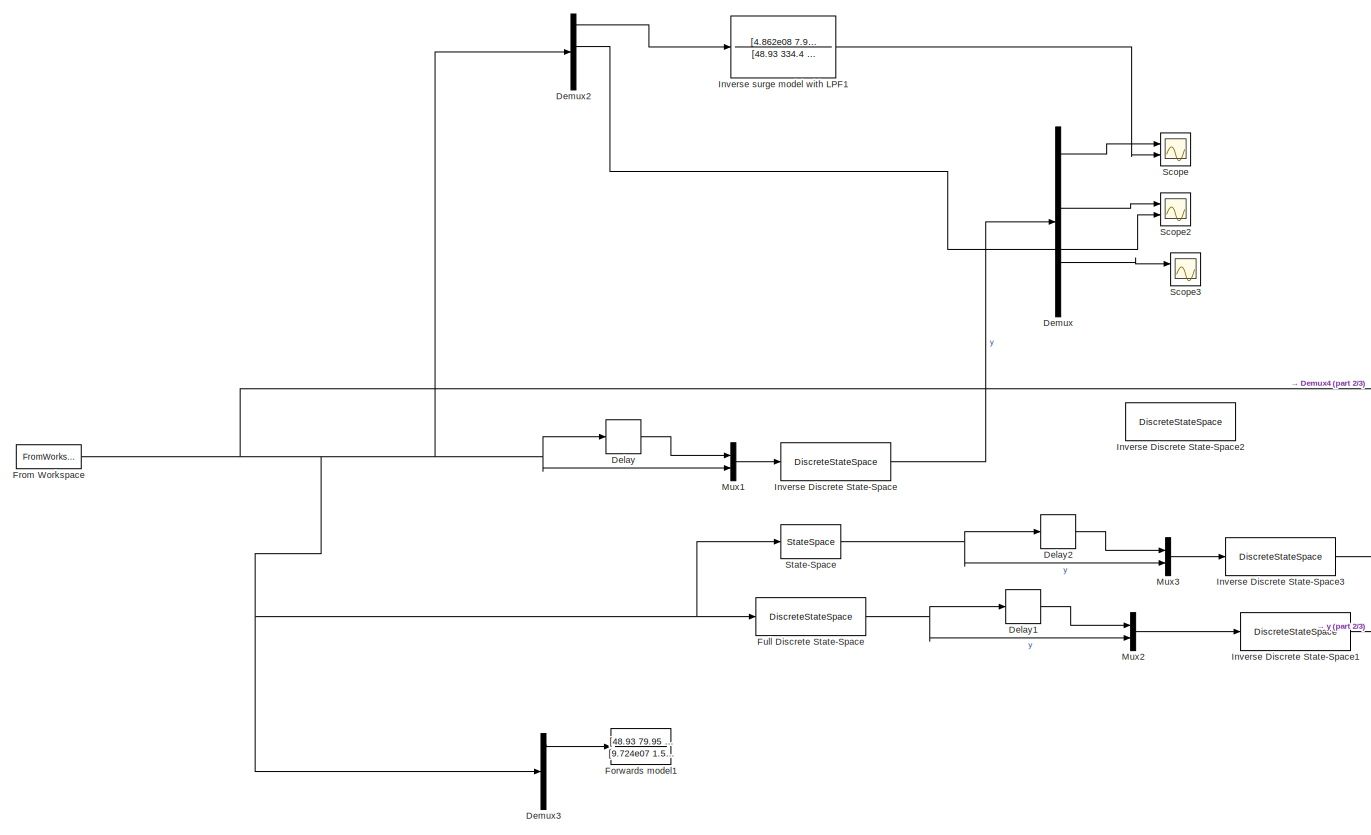
[diagram: root canvas - part 1/3, full width, top band]
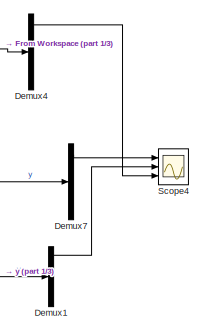
[diagram: root canvas - part 2/3, middle right region]
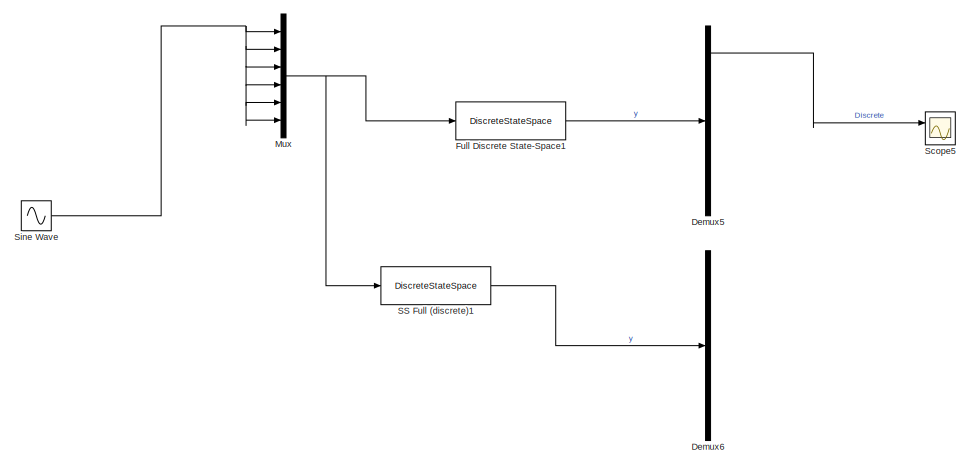
[diagram: root canvas - part 3/3, bottom center region]
MODEL slx_60f16b89c1cf
KIND model
CONFIG AbsTol = auto
CONFIG EnableMultiTasking = off
CONFIG FixedStep = 0.02
CONFIG MaxStep = auto
CONFIG MinStep = auto
CONFIG RelTol = 1e-3
CONFIG SampleTimeConstraint = Unconstrained
CONFIG Solver = ode4
CONFIG SolverName = ode4
CONFIG StartTime = 0.0
CONFIG StopTime = 300
BLOCK [Delay] Delay
  DelayLength = 1
  InitialCondition = 0
  InputPortMap = u0
  Ports = [1, 1]
BLOCK [Delay] Delay1
  DelayLength = 1
  InitialCondition = 0
  InputPortMap = u0
  Ports = [1, 1]
BLOCK [Delay] Delay2
  DelayLength = 1
  InitialCondition = 0
  InputPortMap = u0
  Ports = [1, 1]
BLOCK [Demux] Demux
  DisplayOption = bar
  Outputs = 6
  Ports = [1, 6]
BLOCK [Demux] Demux1
  DisplayOption = bar
  Outputs = 6
  Ports = [1, 6]
BLOCK [Demux] Demux2
  DisplayOption = bar
  Outputs = 6
  Ports = [1, 6]
BLOCK [Demux] Demux3
  DisplayOption = bar
  Outputs = 6
  Ports = [1, 6]
BLOCK [Demux] Demux4
  DisplayOption = bar
  Outputs = 6
  Ports = [1, 6]
BLOCK [Demux] Demux5
  DisplayOption = bar
  Outputs = 6
  Ports = [1, 6]
BLOCK [Demux] Demux6
  DisplayOption = bar
  Outputs = 6
  Ports = [1, 6]
BLOCK [Demux] Demux7
  DisplayOption = bar
  Outputs = 6
  Ports = [1, 6]
BLOCK [TransferFcn] Forwards model1
  Denominator = [9.724e07 1.592e08 5.128e08 4.252e08 6.336e08 2.016e08 2.093e08]
  Numerator = [48.93 79.95 216.2 144.3 149.5 0]
BLOCK [FromWorkspace] From Workspace
  VariableName = Fex_3_10
  ZeroCross = on
BLOCK [DiscreteStateSpace] Full Discrete State-Space
  A = SS_discrete.A
  B = SS_discrete.B
  C = SS_discrete.C
  D = SS_discrete.D
  SampleTime = 0.02
BLOCK [DiscreteStateSpace] Full Discrete State-Space1
  A = SS_discrete.A
  B = SS_discrete.B
  C = SS_discrete.C
  D = SS_discrete.D
  SampleTime = -1
BLOCK [DiscreteStateSpace] Inverse Discrete State-Space
  A = SS_inverse.A
  B = SS_inverse.B
  C = SS_inverse.C
  D = SS_inverse.D
  SampleTime = -1
BLOCK [DiscreteStateSpace] Inverse Discrete State-Space1
  A = SS_inverse.A
  B = SS_inverse.B
  C = SS_inverse.C
  D = SS_inverse.D
  SampleTime = -1
BLOCK [DiscreteStateSpace] Inverse Discrete State-Space2
  A = SS_inverse.A
  B = SS_inverse.B
  C = SS_inverse.C
  D = SS_inverse.D
  SampleTime = -1
BLOCK [DiscreteStateSpace] Inverse Discrete State-Space3
  A = SS_inverse.A
  B = SS_inverse.B
  C = SS_inverse.C
  D = SS_inverse.D
  SampleTime = -1
BLOCK [TransferFcn] Inverse surge  model with LPF1
  Denominator = [48.93 334.4 680.9 1349 1116 921.6 149.5 0]
  Numerator = [4.862e08 7.959e08 2.564e09 2.126e09 3.168e09 1.008e09 1.046e09 0]
BLOCK [Mux] Mux
  DisplayOption = bar
  Inputs = 6
  Ports = [6, 1]
BLOCK [Mux] Mux1
  DisplayOption = bar
  Inputs = 2
  Ports = [2, 1]
BLOCK [Mux] Mux2
  DisplayOption = bar
  Inputs = 2
  Ports = [2, 1]
BLOCK [Mux] Mux3
  DisplayOption = bar
  Inputs = 2
  Ports = [2, 1]
BLOCK [DiscreteStateSpace] SS Full (discrete)1
  A = SS_full.A
  B = SS_full.B
  C = SS_full.C
  D = SS_full.D
  SampleTime = -1
BLOCK [Scope] Scope
  Floating = off
  NumInputPorts = 2
  Ports = [2]
  ScopeSpecificationString = Simulink.scopes.TimeScopeBlockCfg('CurrentConfiguration', extmgr.ConfigurationSet(extmgr.Configuration('Core','General UI',true),extmgr.Configuration('Core','Source UI',true),extmgr.Configuration('Sources','WiredSimulink',true),extmgr.Configuration('Visuals','Time Domain',true,'SerializedDisplays',{struct('MinYLimReal','-17977111187695.12891','MaxYLimReal','12216339234682.4707','YLabelReal','','Mi...<+1504ch>
BLOCK [Scope] Scope2
  Floating = off
  NumInputPorts = 2
  Ports = [2]
  ScopeSpecificationString = Simulink.scopes.TimeScopeBlockCfg('CurrentConfiguration', extmgr.ConfigurationSet(extmgr.Configuration('Core','General UI',true),extmgr.Configuration('Core','Source UI',true),extmgr.Configuration('Sources','WiredSimulink',true,'DataLoggingVariableName','ScopeData2'),extmgr.Configuration('Visuals','Time Domain',true,'SerializedDisplays',{struct('MinYLimReal','-16603916864921.67188','MaxYLimReal','1...<+1521ch>
BLOCK [Scope] Scope3
  Floating = off
  NumInputPorts = 2
  Ports = [2]
  ScopeSpecificationString = Simulink.scopes.TimeScopeBlockCfg('CurrentConfiguration', extmgr.ConfigurationSet(extmgr.Configuration('Core','General UI',true),extmgr.Configuration('Core','Source UI',true),extmgr.Configuration('Sources','WiredSimulink',true,'DataLoggingVariableName','ScopeData1'),extmgr.Configuration('Visuals','Time Domain',true,'SerializedDisplays',{struct('MinYLimReal','-1249988.54366','MaxYLimReal','1249994....<+1456ch>
BLOCK [Scope] Scope4
  Floating = off
  NumInputPorts = 3
  Ports = [3]
  ScopeSpecificationString = Simulink.scopes.TimeScopeBlockCfg('CurrentConfiguration', extmgr.ConfigurationSet(extmgr.Configuration('Core','General UI',true),extmgr.Configuration('Core','Source UI',true),extmgr.Configuration('Sources','WiredSimulink',true,'DataLoggingVariableName','ScopeData2'),extmgr.Configuration('Visuals','Time Domain',true,'SerializedDisplays',{struct('MinYLimReal','109213.02665','MaxYLimReal','233264.264...<+1502ch>
BLOCK [Scope] Scope5
  Floating = off
  NumInputPorts = 2
  Ports = [2]
  ScopeSpecificationString = Simulink.scopes.TimeScopeBlockCfg('CurrentConfiguration', extmgr.ConfigurationSet(extmgr.Configuration('Core','General UI',true),extmgr.Configuration('Core','Source UI',true),extmgr.Configuration('Sources','WiredSimulink',true,'DataLoggingVariableName','ScopeData5'),extmgr.Configuration('Visuals','Time Domain',true,'SerializedDisplays',{struct('MinYLimReal','-0.00513','MaxYLimReal','0.00573','YLab...<+1454ch>
BLOCK [Sin] Sine Wave
  Amplitude = 3e5
  Frequency = 2*pi
  Ports = [0, 1]
  SampleTime = 0
BLOCK [StateSpace] State-Space
  A = SS_full.A
  B = SS_full.B
  C = SS_full.C
  D = SS_full.D
  InitialCondition = 0
  Ports = [1, 1]
LINE Delay1:1 -> Mux2:1
LINE Delay2:1 -> Mux3:1
LINE Delay:1 -> Mux1:1
LINE Demux1:1 -> Scope4:2
LINE Demux2:1 -> Inverse surge  model with LPF1:1
LINE Demux2:3 -> Scope2:2
LINE Demux3:1 -> Forwards model1:1
LINE Demux4:1 -> Scope4:3
LINE Demux5:1 -> Scope5:1
LINE Demux7:1 -> Scope4:1
LINE Demux:1 -> Scope:1
LINE Demux:3 -> Scope2:1
LINE Demux:5 -> Scope3:1
NET From Workspace:1 -> Delay:1, Demux2:1, Demux3:1, Demux4:1, Full Discrete State-Space:1, Mux1:2, State-Space:1
LINE Full Discrete State-Space1:1 -> Demux5:1
NET Full Discrete State-Space:1 -> Delay1:1, Mux2:2
LINE Inverse Discrete State-Space1:1 -> Demux1:1
LINE Inverse Discrete State-Space3:1 -> Demux7:1
LINE Inverse Discrete State-Space:1 -> Demux:1
LINE Inverse surge  model with LPF1:1 -> Scope:2
LINE Mux1:1 -> Inverse Discrete State-Space:1
LINE Mux2:1 -> Inverse Discrete State-Space1:1
LINE Mux3:1 -> Inverse Discrete State-Space3:1
NET Mux:1 -> Full Discrete State-Space1:1, SS Full (discrete)1:1
LINE SS Full (discrete)1:1 -> Demux6:1
NET Sine Wave:1 -> Mux:1, Mux:2, Mux:3, Mux:4, Mux:5, Mux:6
NET State-Space:1 -> Delay2:1, Mux3:2
note: NET lines group one-source signal fan-out (src -> all destinations, sorted); 1:1 wires keep LINE
